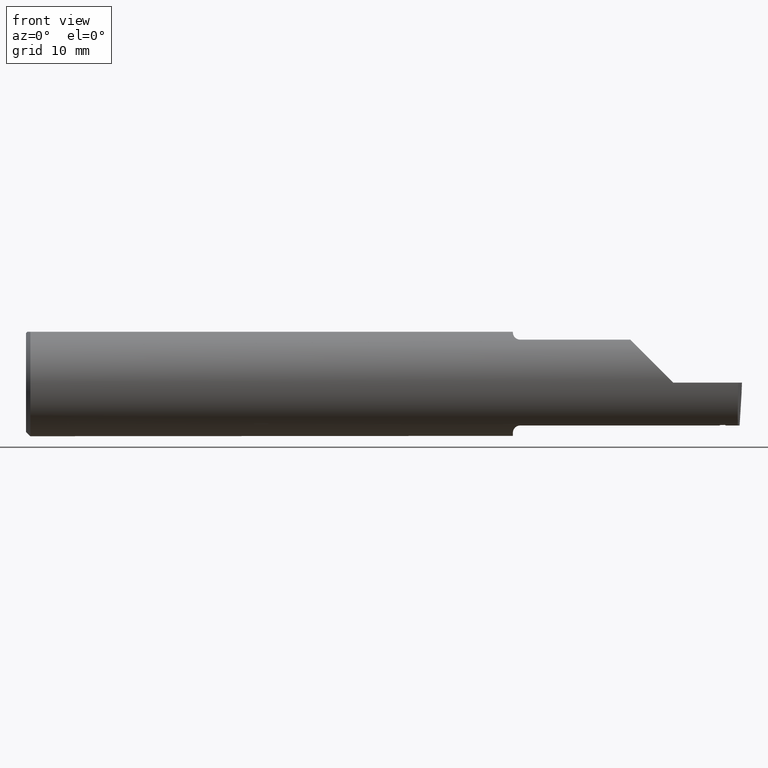
[diagram: clean part render]
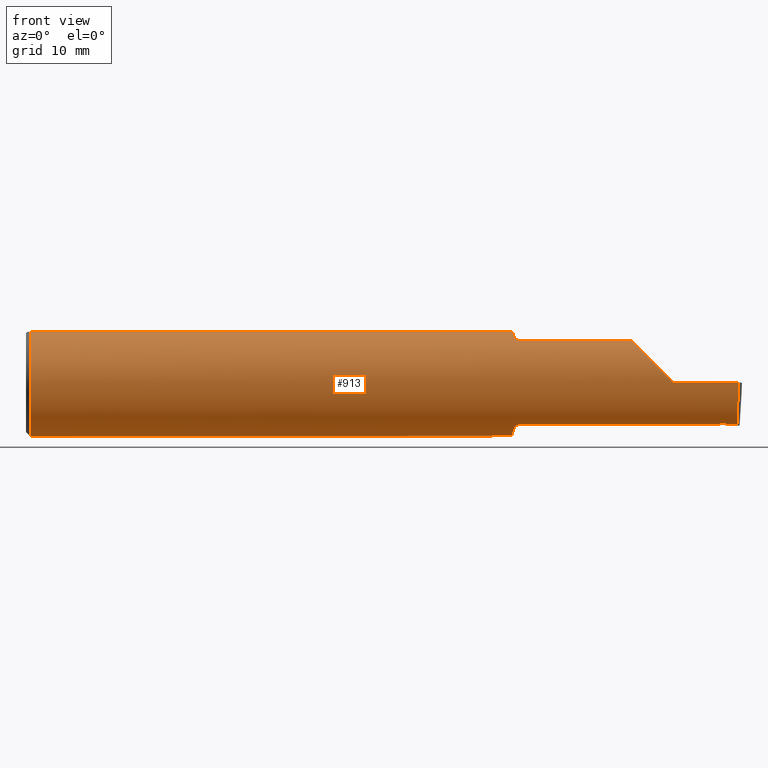
[diagram: same view with one face highlighted and labeled with its STEP entity id]
A machine part, front view. The second image highlights one B-rep face of the part: STEP entity #913.
In plain terms, the highlighted cylindrical surface (partial cylindrical patch) has radius 4.7587 mm, axis along (-1, -0, -0).
Its self-contained STEP definition (entity closure, byte-faithful):
#6 = CARTESIAN_POINT ( 'NONE',  ( 1.724999999999999867, -0.1172600179964007477, 0.1461167706989302817 ) ) ;
#7 = CARTESIAN_POINT ( 'NONE',  ( 2.113883229301070532, -0.1172600179964009143, 0.1461167706989301707 ) ) ;
#22 = CARTESIAN_POINT ( 'NONE',  ( 1.720724556588812515, -0.1172600179964061184, 0.1461167706989260351 ) ) ;
#26 =( BOUNDED_CURVE ( )  B_SPLINE_CURVE ( 3, ( #451, #853, #748, #429 ),
 .UNSPECIFIED., .F., .T. ) 
 B_SPLINE_CURVE_WITH_KNOTS ( ( 4, 4 ),
 ( 6.032366188922103412, 6.926893589830550368 ),
 .UNSPECIFIED. ) 
 CURVE ( )  GEOMETRIC_REPRESENTATION_ITEM ( )  RATIONAL_B_SPLINE_CURVE ( ( 1.000000000000000000, 0.9344226172588803170, 0.9344226172588803170, 1.000000000000000000 ) ) 
 REPRESENTATION_ITEM ( '' )  );
#29 = EDGE_CURVE ( 'NONE', #661, #442, #438, .T. ) ;
#40 = DIRECTION ( 'NONE',  ( -1.000000000000000000, -0.000000000000000000, -0.000000000000000000 ) ) ;
#45 = DIRECTION ( 'NONE',  ( -1.000000000000000000, -0.000000000000000000, -0.000000000000000000 ) ) ;
#48 = CYLINDRICAL_SURFACE ( 'NONE', #977, 0.1873499999999999888 ) ;
#52 = VERTEX_POINT ( 'NONE', #283 ) ;
#53 = CARTESIAN_POINT ( 'NONE',  ( 1.701062863587535334, -0.08334999999999989639, -0.1677879614275112619 ) ) ;
#54 = LINE ( 'NONE', #768, #820 ) ;
#66 = LINE ( 'NONE', #379, #316 ) ;
#69 = DIRECTION ( 'NONE',  ( 1.000000000000000000, 0.000000000000000000, 0.000000000000000000 ) ) ;
#72 = B_SPLINE_CURVE_WITH_KNOTS ( 'NONE', 3,
 ( #258, #424, #821, #431 ),
 .UNSPECIFIED., .F., .F.,
 ( 4, 4 ),
 ( 0.001278539404338873992, 0.001694873732696220705 ),
 .UNSPECIFIED. ) ;
#86 = VERTEX_POINT ( 'NONE', #1025 ) ;
#88 = CIRCLE ( 'NONE', #1012, 0.1873499999999999888 ) ;
#92 = CARTESIAN_POINT ( 'NONE',  ( 1.724999999999999867, -0.1172600179964006922, -0.1461167706989303094 ) ) ;
#105 = AXIS2_PLACEMENT_3D ( 'NONE', #130, #448, #539 ) ;
#130 = CARTESIAN_POINT ( 'NONE',  ( 1.699999999999999956, 0.000000000000000000, 0.000000000000000000 ) ) ;
#136 = VERTEX_POINT ( 'NONE', #946 ) ;
#138 = CARTESIAN_POINT ( 'NONE',  ( 1.699999999999999956, -0.06039039658753699025, 0.1773499999999999799 ) ) ;
#139 = CARTESIAN_POINT ( 'NONE',  ( 1.701612951569643428, -0.08702537370779858672, -0.1659621904011591986 ) ) ;
#149 = EDGE_CURVE ( 'NONE', #967, #52, #88, .T. ) ;
#151 = VERTEX_POINT ( 'NONE', #237 ) ;
#161 = VERTEX_POINT ( 'NONE', #7 ) ;
#167 = CARTESIAN_POINT ( 'NONE',  ( 0.000000000000000000, 0.000000000000000000, 0.000000000000000000 ) ) ;
#169 = CARTESIAN_POINT ( 'NONE',  ( 1.700344683557281300, -0.07855153123406181936, 0.1701716388274757685 ) ) ;
#183 = CARTESIAN_POINT ( 'NONE',  ( 2.438937601851397297, -0.1209685768375081683, -0.1430616158090907419 ) ) ;
#192 = ORIENTED_EDGE ( 'NONE', *, *, #855, .F. ) ;
#193 = CARTESIAN_POINT ( 'NONE',  ( 2.436118896717770710, -0.1207999448597607134, -0.1432040782660236045 ) ) ;
#194 = EDGE_CURVE ( 'NONE', #136, #967, #66, .T. ) ;
#196 = CARTESIAN_POINT ( 'NONE',  ( 1.704475235432781233, -0.09757364237049405420, -0.1599863467203317402 ) ) ;
#201 = CARTESIAN_POINT ( 'NONE',  ( 2.422025638076214182, -0.1199515203394592167, -0.1439154448565278244 ) ) ;
#204 = ORIENTED_EDGE ( 'NONE', *, *, #744, .F. ) ;
#207 = CARTESIAN_POINT ( 'NONE',  ( 2.422025638076214182, -0.1199515203394592167, -0.1439154448565278244 ) ) ;
#211 = CARTESIAN_POINT ( 'NONE',  ( 1.702380638915944600, -0.09060738690120609395, -0.1640321561807270567 ) ) ;
#227 = CARTESIAN_POINT ( 'NONE',  ( 2.113883229301070532, -0.1172600179964009143, 0.1461167706989301707 ) ) ;
#237 = CARTESIAN_POINT ( 'NONE',  ( 1.724999999999999867, -0.1172600179964006922, -0.1461167706989303094 ) ) ;
#251 = CARTESIAN_POINT ( 'NONE',  ( 1.724999999999999867, -0.1172600179964007477, 0.1461167706989302817 ) ) ;
#255 = AXIS2_PLACEMENT_3D ( 'NONE', #345, #655, #664 ) ;
#258 = CARTESIAN_POINT ( 'NONE',  ( 1.701062863587535334, -0.08334999999999989639, -0.1677879614275112619 ) ) ;
#262 = CARTESIAN_POINT ( 'NONE',  ( 1.715551048069661633, -0.1140002044565611578, -0.1486821290834929865 ) ) ;
#267 = B_SPLINE_CURVE_WITH_KNOTS ( 'NONE', 3,
 ( #183, #433, #193, #833, #733, #517, #499, #675, #358, #513 ),
 .UNSPECIFIED., .F., .F.,
 ( 4, 3, 3, 4 ),
 ( 0.000000000000000000, 0.0001077215152118620318, 0.0002693038001888985200, 0.0004308860970011368940 ),
 .UNSPECIFIED. ) ;
#272 = CARTESIAN_POINT ( 'NONE',  ( 2.444191707502841648, -0.1172600179964005396, -0.1461167706989303094 ) ) ;
#283 = CARTESIAN_POINT ( 'NONE',  ( 1.699999999999999956, -0.06851976604679065053, 0.1743704796142198643 ) ) ;
#287 = CARTESIAN_POINT ( 'NONE',  ( 2.078500000000000014, -0.1172600179964007061, -0.1461167706989303094 ) ) ;
#291 = CARTESIAN_POINT ( 'NONE',  ( 0.000000000000000000, -0.1873499999999999888, 3.062657711647045301E-16 ) ) ;
#294 = ORIENTED_EDGE ( 'NONE', *, *, #149, .F. ) ;
#299 = DIRECTION ( 'NONE',  ( -1.000000000000000000, -0.000000000000000000, -0.000000000000000000 ) ) ;
#300 = CARTESIAN_POINT ( 'NONE',  ( 2.438937601851397297, -0.1209685768375081683, -0.1430616158090907419 ) ) ;
#309 = CARTESIAN_POINT ( 'NONE',  ( 2.150065971957467070, -0.1623470442677542591, 0.1099340280425335908 ) ) ;
#312 = ORIENTED_EDGE ( 'NONE', *, *, #550, .T. ) ;
#314 = EDGE_CURVE ( 'NONE', #883, #661, #72, .T. ) ;
#316 = VECTOR ( 'NONE', #69, 39.37007874015748143 ) ;
#329 = B_SPLINE_CURVE_WITH_KNOTS ( 'NONE', 3,
 ( #434, #998, #667, #682, #993, #605 ),
 .UNSPECIFIED., .F., .F.,
 ( 4, 2, 4 ),
 ( 0.0002908299335268915752, 0.0003847768622424025623, 0.0004787237909579135494 ),
 .UNSPECIFIED. ) ;
#332 = EDGE_CURVE ( 'NONE', #552, #869, #943, .T. ) ;
#345 = CARTESIAN_POINT ( 'NONE',  ( 0.01499999999999997689, 0.000000000000000000, 0.000000000000000000 ) ) ;
#350 = EDGE_CURVE ( 'NONE', #151, #883, #607, .T. ) ;
#358 = CARTESIAN_POINT ( 'NONE',  ( 2.424139595439235073, -0.1200794038298985400, -0.1438088557470698359 ) ) ;
#359 = DIRECTION ( 'NONE',  ( 0.000000000000000000, 0.000000000000000000, 1.000000000000000000 ) ) ;
#367 = VECTOR ( 'NONE', #915, 39.37007874015748143 ) ;
#372 = ORIENTED_EDGE ( 'NONE', *, *, #830, .T. ) ;
#376 = ORIENTED_EDGE ( 'NONE', *, *, #799, .F. ) ;
#378 = CARTESIAN_POINT ( 'NONE',  ( 2.260000000000000231, -0.1873499999999999888, 2.987958743070287587E-17 ) ) ;
#379 = CARTESIAN_POINT ( 'NONE',  ( 0.000000000000000000, -0.06039039658753697637, 0.1773499999999999799 ) ) ;
#381 = EDGE_CURVE ( 'NONE', #86, #393, #54, .T. ) ;
#382 = VERTEX_POINT ( 'NONE', #930 ) ;
#387 = DIRECTION ( 'NONE',  ( 1.000000000000000000, 0.000000000000000000, 0.000000000000000000 ) ) ;
#393 = VERTEX_POINT ( 'NONE', #272 ) ;
#394 = EDGE_CURVE ( 'NONE', #516, #582, #754, .T. ) ;
#403 = ORIENTED_EDGE ( 'NONE', *, *, #314, .F. ) ;
#411 = DIRECTION ( 'NONE',  ( 0.000000000000000000, 0.000000000000000000, 1.000000000000000000 ) ) ;
#414 = ORIENTED_EDGE ( 'NONE', *, *, #990, .F. ) ;
#417 = CARTESIAN_POINT ( 'NONE',  ( 1.709249444250373617, -0.1073163636891284051, 0.1536158790136666619 ) ) ;
#424 = CARTESIAN_POINT ( 'NONE',  ( 1.700346246588684940, -0.07856197451716399882, -0.1701664510438046229 ) ) ;
#429 = CARTESIAN_POINT ( 'NONE',  ( 2.487009473749072441, -0.1873499999999999055, 0.000000000000000000 ) ) ;
#431 = CARTESIAN_POINT ( 'NONE',  ( 1.699999999999999956, -0.06851976604679065053, -0.1743704796142198643 ) ) ;
#433 = CARTESIAN_POINT ( 'NONE',  ( 2.437528246080943095, -0.1208843235918136555, -0.1431328578062397439 ) ) ;
#434 = CARTESIAN_POINT ( 'NONE',  ( 2.444191707502841648, -0.1172600179964005396, -0.1461167706989303094 ) ) ;
#438 = CIRCLE ( 'NONE', #105, 0.1873499999999999888 ) ;
#441 = LINE ( 'NONE', #287, #622 ) ;
#442 = VERTEX_POINT ( 'NONE', #596 ) ;
#444 = EDGE_CURVE ( 'NONE', #765, #161, #683, .T. ) ;
#448 = DIRECTION ( 'NONE',  ( 1.000000000000000000, 0.000000000000000000, 0.000000000000000000 ) ) ;
#450 = VERTEX_POINT ( 'NONE', #599 ) ;
#451 = CARTESIAN_POINT ( 'NONE',  ( 2.485628535317038867, -0.1172600179964007061, -0.1461167706989303094 ) ) ;
#459 = CARTESIAN_POINT ( 'NONE',  ( 2.420647357912071751, -0.1172600179964005812, -0.1461167706989303650 ) ) ;
#464 = EDGE_CURVE ( 'NONE', #986, #382, #749, .T. ) ;
#466 = DIRECTION ( 'NONE',  ( 0.000000000000000000, 0.000000000000000000, -1.000000000000000000 ) ) ;
#488 = CARTESIAN_POINT ( 'NONE',  ( 1.701062863587533558, -0.08334999999998812803, 0.1677879614275171183 ) ) ;
#493 = ORIENTED_EDGE ( 'NONE', *, *, #194, .F. ) ;
#499 = CARTESIAN_POINT ( 'NONE',  ( 2.428367553115089894, -0.1203343260142653581, -0.1435955169310396684 ) ) ;
#503 = CARTESIAN_POINT ( 'NONE',  ( 1.716924463282975211, -0.1152182125075826291, 0.1477647100440766526 ) ) ;
#508 = EDGE_CURVE ( 'NONE', #582, #151, #441, .T. ) ;
#510 = B_SPLINE_CURVE_WITH_KNOTS ( 'NONE', 3,
 ( #653, #978, #893, #417, #970, #503, #22, #251 ),
 .UNSPECIFIED., .F., .F.,
 ( 4, 2, 2, 4 ),
 ( 0.0004561457252213464947, 0.001084815134961806095, 0.001399149839832031532, 0.001713484544702257185 ),
 .UNSPECIFIED. ) ;
#513 = CARTESIAN_POINT ( 'NONE',  ( 2.422025638076214182, -0.1199515203394592167, -0.1439154448565278244 ) ) ;
#515 = CARTESIAN_POINT ( 'NONE',  ( 2.421567443531847719, -0.1190608260629894832, -0.1446578261396952170 ) ) ;
#516 = VERTEX_POINT ( 'NONE', #207 ) ;
#517 = CARTESIAN_POINT ( 'NONE',  ( 2.430481538961044574, -0.1204616461840352093, -0.1434888214913440374 ) ) ;
#530 = CARTESIAN_POINT ( 'NONE',  ( 1.701062863587535334, -0.08334999999999989639, -0.1677879614275112619 ) ) ;
#538 = CARTESIAN_POINT ( 'NONE',  ( 2.078500000000000014, -0.1172600179964007061, 0.1461167706989303094 ) ) ;
#539 = DIRECTION ( 'NONE',  ( 0.000000000000000000, 0.000000000000000000, -1.000000000000000000 ) ) ;
#550 = EDGE_CURVE ( 'NONE', #382, #161, #948, .T. ) ;
#552 = VERTEX_POINT ( 'NONE', #713 ) ;
#556 = ORIENTED_EDGE ( 'NONE', *, *, #1027, .F. ) ;
#577 = CARTESIAN_POINT ( 'NONE',  ( 1.717163414264744725, -0.1151183835841406849, -0.1478135984872520903 ) ) ;
#582 = VERTEX_POINT ( 'NONE', #953 ) ;
#585 = CARTESIAN_POINT ( 'NONE',  ( 1.722868998470237889, -0.1172600179964006645, -0.1461167706989303372 ) ) ;
#587 = VERTEX_POINT ( 'NONE', #300 ) ;
#596 = CARTESIAN_POINT ( 'NONE',  ( 1.699999999999999956, 0.06039039658754216666, 0.1773499999999999799 ) ) ;
#599 = CARTESIAN_POINT ( 'NONE',  ( 1.701062863587533558, -0.08334999999998812803, 0.1677879614275171183 ) ) ;
#605 = CARTESIAN_POINT ( 'NONE',  ( 2.438937601851397297, -0.1209685768375081683, -0.1430616158090907419 ) ) ;
#606 = DIRECTION ( 'NONE',  ( -1.000000000000000000, -0.000000000000000000, -0.000000000000000000 ) ) ;
#607 = B_SPLINE_CURVE_WITH_KNOTS ( 'NONE', 3,
 ( #92, #585, #736, #577, #262, #910, #673, #919, #196, #211, #139, #530 ),
 .UNSPECIFIED., .F., .F.,
 ( 4, 2, 2, 2, 2, 4 ),
 ( 1.967976973658592312E-07, 0.0001599896235275545964, 0.0003197824493577432984, 0.0006393681010181202686, 0.0009589537526784971304, 0.001278539404338873992 ),
 .UNSPECIFIED. ) ;
#616 = CARTESIAN_POINT ( 'NONE',  ( 2.487009473749072441, -0.1873499999999999055, 0.000000000000000000 ) ) ;
#622 = VECTOR ( 'NONE', #45, 39.37007874015748143 ) ;
#653 = CARTESIAN_POINT ( 'NONE',  ( 1.701062863587533558, -0.08334999999998812803, 0.1677879614275171183 ) ) ;
#654 = VECTOR ( 'NONE', #40, 39.37007874015748143 ) ;
#655 = DIRECTION ( 'NONE',  ( -1.000000000000000000, -0.000000000000000000, -0.000000000000000000 ) ) ;
#661 = VERTEX_POINT ( 'NONE', #739 ) ;
#663 = CARTESIAN_POINT ( 'NONE',  ( 1.699999999999999956, -0.06851976604679065053, 0.1743704796142198643 ) ) ;
#664 = DIRECTION ( 'NONE',  ( 0.000000000000000000, 0.000000000000000000, 1.000000000000000000 ) ) ;
#665 = ORIENTED_EDGE ( 'NONE', *, *, #381, .F. ) ;
#667 = CARTESIAN_POINT ( 'NONE',  ( 2.443071615181778622, -0.1190227122283912392, -0.1446875610761316489 ) ) ;
#672 = DIRECTION ( 'NONE',  ( -1.000000000000000000, -0.000000000000000000, -0.000000000000000000 ) ) ;
#673 = CARTESIAN_POINT ( 'NONE',  ( 1.709228130464466089, -0.1072797540790367404, -0.1536407449207395082 ) ) ;
#675 = CARTESIAN_POINT ( 'NONE',  ( 2.426253567114300846, -0.1202070058351702025, -0.1437022123785499372 ) ) ;
#682 = CARTESIAN_POINT ( 'NONE',  ( 2.441381938566095311, -0.1204606180674028665, -0.1434926334387276181 ) ) ;
#683 = LINE ( 'NONE', #538, #367 ) ;
#698 = ORIENTED_EDGE ( 'NONE', *, *, #508, .F. ) ;
#706 = AXIS2_PLACEMENT_3D ( 'NONE', #934, #672, #359 ) ;
#713 = CARTESIAN_POINT ( 'NONE',  ( 0.01499999999999751879, 0.06039039658754215278, 0.1773499999999999799 ) ) ;
#715 = ORIENTED_EDGE ( 'NONE', *, *, #444, .F. ) ;
#733 = CARTESIAN_POINT ( 'NONE',  ( 2.432595539171431565, -0.1205886845300085525, -0.1433820739707263869 ) ) ;
#736 = CARTESIAN_POINT ( 'NONE',  ( 1.720804171164107554, -0.1167508198888949356, -0.1465276362740037808 ) ) ;
#739 = CARTESIAN_POINT ( 'NONE',  ( 1.699999999999999956, -0.06851976604679065053, -0.1743704796142198643 ) ) ;
#744 = EDGE_CURVE ( 'NONE', #450, #765, #510, .T. ) ;
#748 = CARTESIAN_POINT ( 'NONE',  ( 2.485494735025390867, -0.1873500000000000443, -0.05781030015605120170 ) ) ;
#749 = LINE ( 'NONE', #291, #654 ) ;
#754 = B_SPLINE_CURVE_WITH_KNOTS ( 'NONE', 3,
 ( #201, #515, #849, #459 ),
 .UNSPECIFIED., .F., .F.,
 ( 4, 4 ),
 ( 0.000000000000000000, 9.500012044866924582E-05 ),
 .UNSPECIFIED. ) ;
#760 = FACE_OUTER_BOUND ( 'NONE', #938, .T. ) ;
#765 = VERTEX_POINT ( 'NONE', #6 ) ;
#768 = CARTESIAN_POINT ( 'NONE',  ( 2.078500000000000014, -0.1172600179964007061, -0.1461167706989303094 ) ) ;
#778 = EDGE_CURVE ( 'NONE', #52, #450, #885, .T. ) ;
#795 = CARTESIAN_POINT ( 'NONE',  ( 2.202189699843949189, -0.1873500000000000443, 0.05781030015605096578 ) ) ;
#797 = ORIENTED_EDGE ( 'NONE', *, *, #29, .F. ) ;
#799 = EDGE_CURVE ( 'NONE', #869, #136, #874, .T. ) ;
#820 = VECTOR ( 'NONE', #606, 39.37007874015748143 ) ;
#821 = CARTESIAN_POINT ( 'NONE',  ( 1.699999999999999956, -0.07359296612170562746, -0.1723769398647691520 ) ) ;
#830 = EDGE_CURVE ( 'NONE', #86, #986, #26, .T. ) ;
#833 = CARTESIAN_POINT ( 'NONE',  ( 2.434709553758566791, -0.1207154407314173922, -0.1432752765449073484 ) ) ;
#834 = CARTESIAN_POINT ( 'NONE',  ( 0.01499999999999997689, 0.000000000000000000, -0.1873499999999999888 ) ) ;
#839 = VECTOR ( 'NONE', #299, 39.37007874015748143 ) ;
#849 = CARTESIAN_POINT ( 'NONE',  ( 2.421107959158274259, -0.1181635923225869411, -0.1453916442042585966 ) ) ;
#852 = ORIENTED_EDGE ( 'NONE', *, *, #778, .F. ) ;
#853 = CARTESIAN_POINT ( 'NONE',  ( 2.485002117657001186, -0.1623470442677541481, -0.1099340280425338545 ) ) ;
#855 = EDGE_CURVE ( 'NONE', #393, #587, #329, .T. ) ;
#869 = VERTEX_POINT ( 'NONE', #834 ) ;
#874 = CIRCLE ( 'NONE', #706, 0.1873499999999999888 ) ;
#882 = CARTESIAN_POINT ( 'NONE',  ( 1.699999999999999956, 0.000000000000000000, 0.000000000000000000 ) ) ;
#883 = VERTEX_POINT ( 'NONE', #53 ) ;
#885 = B_SPLINE_CURVE_WITH_KNOTS ( 'NONE', 3,
 ( #663, #886, #169, #488 ),
 .UNSPECIFIED., .F., .F.,
 ( 4, 4 ),
 ( 4.423516731080786679E-05, 0.0004561457252213465489 ),
 .UNSPECIFIED. ) ;
#886 = CARTESIAN_POINT ( 'NONE',  ( 1.699999999999999289, -0.07360907839729495528, 0.1723706084642000758 ) ) ;
#889 = ORIENTED_EDGE ( 'NONE', *, *, #332, .F. ) ;
#890 = DIRECTION ( 'NONE',  ( -1.000000000000000000, -0.000000000000000000, -0.000000000000000000 ) ) ;
#893 = CARTESIAN_POINT ( 'NONE',  ( 1.704075010165367887, -0.09778159395695855405, 0.1599914159748311027 ) ) ;
#905 = ORIENTED_EDGE ( 'NONE', *, *, #394, .F. ) ;
#910 = CARTESIAN_POINT ( 'NONE',  ( 1.711340974786206504, -0.1102890168945986626, -0.1514792188789464422 ) ) ;
#913 = ADVANCED_FACE ( 'NONE', ( #760 ), #48, .T. ) ;
#915 = DIRECTION ( 'NONE',  ( 1.000000000000000000, 0.000000000000000000, 0.000000000000000000 ) ) ;
#919 = CARTESIAN_POINT ( 'NONE',  ( 1.705806801261506855, -0.1009700360460131924, -0.1578590382459146846 ) ) ;
#930 = CARTESIAN_POINT ( 'NONE',  ( 2.260000000000000231, -0.1873499999999999888, 2.987958743070287587E-17 ) ) ;
#934 = CARTESIAN_POINT ( 'NONE',  ( 0.01499999999999997689, 0.000000000000000000, 0.000000000000000000 ) ) ;
#938 = EDGE_LOOP ( 'NONE', ( #665, #372, #981, #312, #715, #204, #852, #294, #493, #376, #889, #414, #797, #403, #1038, #698, #905, #556, #192 ) ) ;
#939 = LINE ( 'NONE', #1030, #839 ) ;
#943 = CIRCLE ( 'NONE', #255, 0.1873499999999999888 ) ;
#946 = CARTESIAN_POINT ( 'NONE',  ( 0.01499999999999997689, -0.06039039658753697637, 0.1773499999999999799 ) ) ;
#948 =( BOUNDED_CURVE ( )  B_SPLINE_CURVE ( 3, ( #378, #795, #309, #227 ),
 .UNSPECIFIED., .F., .T. ) 
 B_SPLINE_CURVE_WITH_KNOTS ( ( 4, 4 ),
 ( 4.712388980384688786, 5.606916381293135743 ),
 .UNSPECIFIED. ) 
 CURVE ( )  GEOMETRIC_REPRESENTATION_ITEM ( )  RATIONAL_B_SPLINE_CURVE ( ( 1.000000000000000000, 0.9344226172588803170, 0.9344226172588803170, 1.000000000000000000 ) ) 
 REPRESENTATION_ITEM ( '' )  );
#953 = CARTESIAN_POINT ( 'NONE',  ( 2.420647357912071751, -0.1172600179964005812, -0.1461167706989303650 ) ) ;
#967 = VERTEX_POINT ( 'NONE', #138 ) ;
#970 = CARTESIAN_POINT ( 'NONE',  ( 1.711319809340845932, -0.1102629523538394968, 0.1514982751257170634 ) ) ;
#977 = AXIS2_PLACEMENT_3D ( 'NONE', #167, #890, #411 ) ;
#978 = CARTESIAN_POINT ( 'NONE',  ( 1.702158970028689655, -0.09067355718685699006, 0.1641499263364886996 ) ) ;
#981 = ORIENTED_EDGE ( 'NONE', *, *, #464, .T. ) ;
#986 = VERTEX_POINT ( 'NONE', #616 ) ;
#990 = EDGE_CURVE ( 'NONE', #442, #552, #939, .T. ) ;
#993 = CARTESIAN_POINT ( 'NONE',  ( 2.440211079559213125, -0.1210447068979502022, -0.1429972425317855012 ) ) ;
#998 = CARTESIAN_POINT ( 'NONE',  ( 2.443688705465293598, -0.1181608300328332306, -0.1453938609665416382 ) ) ;
#1012 = AXIS2_PLACEMENT_3D ( 'NONE', #882, #387, #466 ) ;
#1025 = CARTESIAN_POINT ( 'NONE',  ( 2.485628535317038867, -0.1172600179964007061, -0.1461167706989303094 ) ) ;
#1027 = EDGE_CURVE ( 'NONE', #587, #516, #267, .T. ) ;
#1030 = CARTESIAN_POINT ( 'NONE',  ( 0.000000000000000000, 0.06039039658753697637, 0.1773499999999999799 ) ) ;
#1038 = ORIENTED_EDGE ( 'NONE', *, *, #350, .F. ) ;